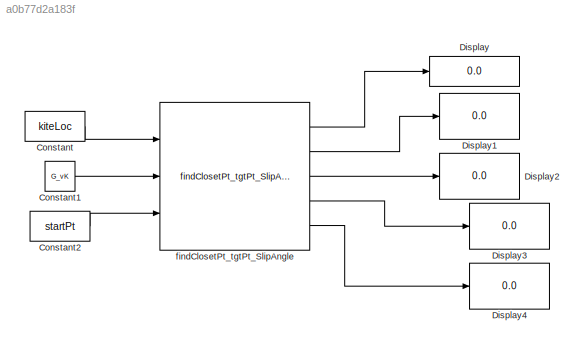
MODEL slx_a0b77d2a183f
KIND model
CONFIG AbsTol = auto
CONFIG EnableMultiTasking = off
CONFIG FixedStep = auto
CONFIG MaxStep = auto
CONFIG MinStep = auto
CONFIG RelTol = 1e-3
CONFIG SampleTimeConstraint = Unconstrained
CONFIG Solver = VariableStepAuto
CONFIG SolverName = VariableStepAuto
CONFIG StartTime = 0.0
CONFIG StopTime = 0
BLOCK [Constant] Constant
  Value = kiteLoc
BLOCK [Constant] Constant1
  Value = G_vK
BLOCK [Constant] Constant2
  Value = startPt
BLOCK [Display] Display
  Decimation = 1
  Ports = [1]
BLOCK [Display] Display1
  Decimation = 1
  Ports = [1]
BLOCK [Display] Display2
  Decimation = 1
  Ports = [1]
BLOCK [Display] Display3
  Decimation = 1
  Ports = [1]
BLOCK [Display] Display4
  Decimation = 1
  Ports = [1]
BLOCK [Reference] findClosetPt_tgtPt_SlipAngle  REF=findClosetPt_tgtPt_SlipAngle/findClosetPt_tgtPt_SlipAngle
  Ports = [3, 5]
  SourceBlock = findClosetPt_tgtPt_SlipAngle/findClosetPt_tgtPt_SlipAngle
LINE Constant1:1 -> findClosetPt_tgtPt_SlipAngle:2
LINE Constant2:1 -> findClosetPt_tgtPt_SlipAngle:3
LINE Constant:1 -> findClosetPt_tgtPt_SlipAngle:1
LINE findClosetPt_tgtPt_SlipAngle:1 -> Display:1
LINE findClosetPt_tgtPt_SlipAngle:2 -> Display1:1
LINE findClosetPt_tgtPt_SlipAngle:3 -> Display2:1
LINE findClosetPt_tgtPt_SlipAngle:4 -> Display3:1
LINE findClosetPt_tgtPt_SlipAngle:5 -> Display4:1
